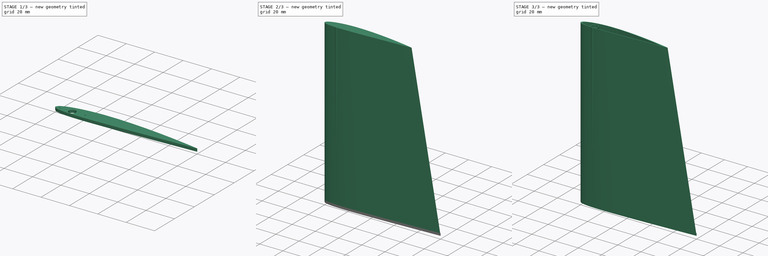
[diagram: build sequence overview — one tinted view per stage of 3, left to right]
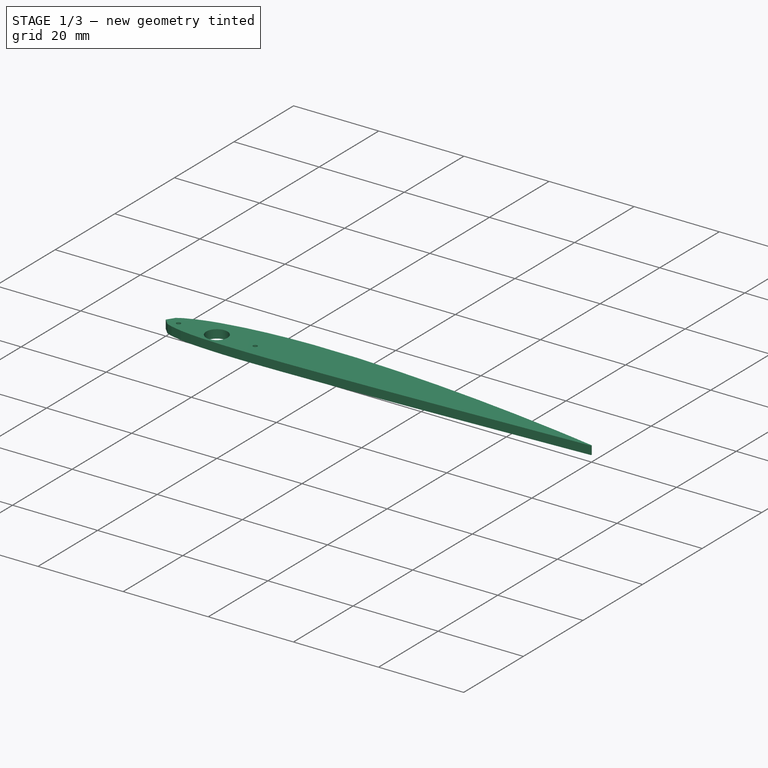
[diagram: stage 1 of 3 — iso view after this stage's code; geometry added in this stage tinted green]
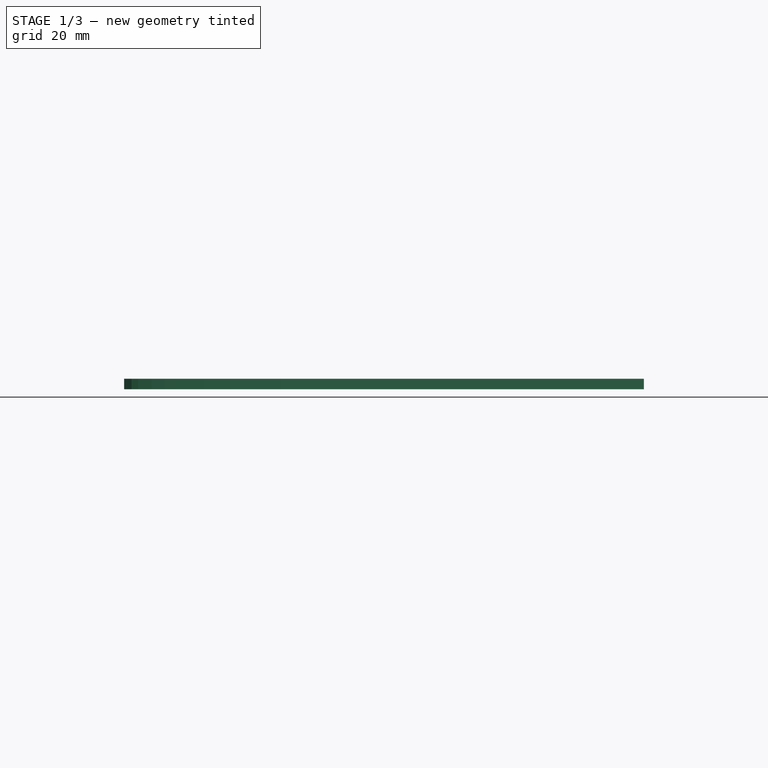
[diagram: stage 1 of 3 — front view after this stage's code; geometry added in this stage tinted green]
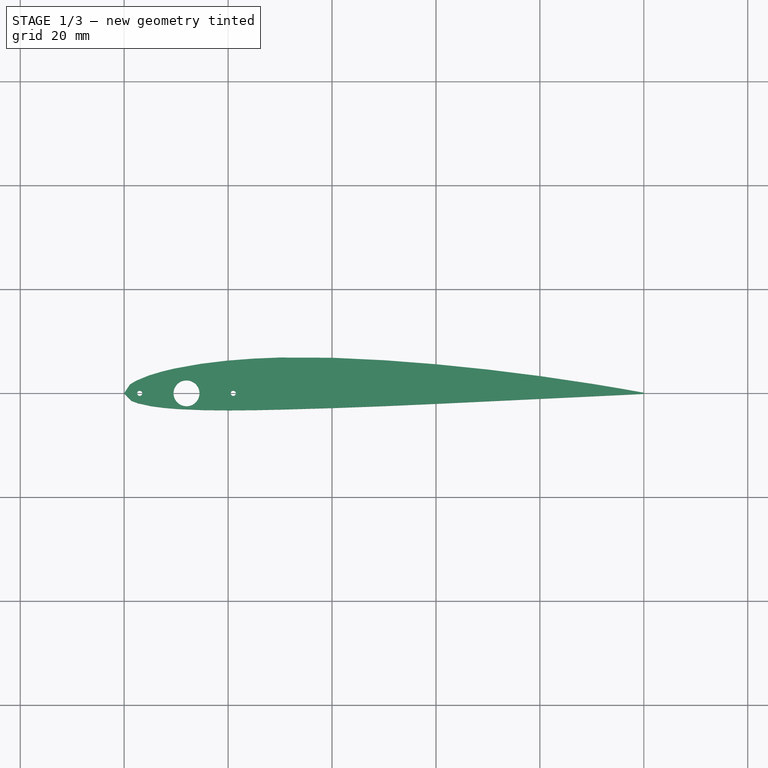
[diagram: stage 1 of 3 — top view after this stage's code; geometry added in this stage tinted green]
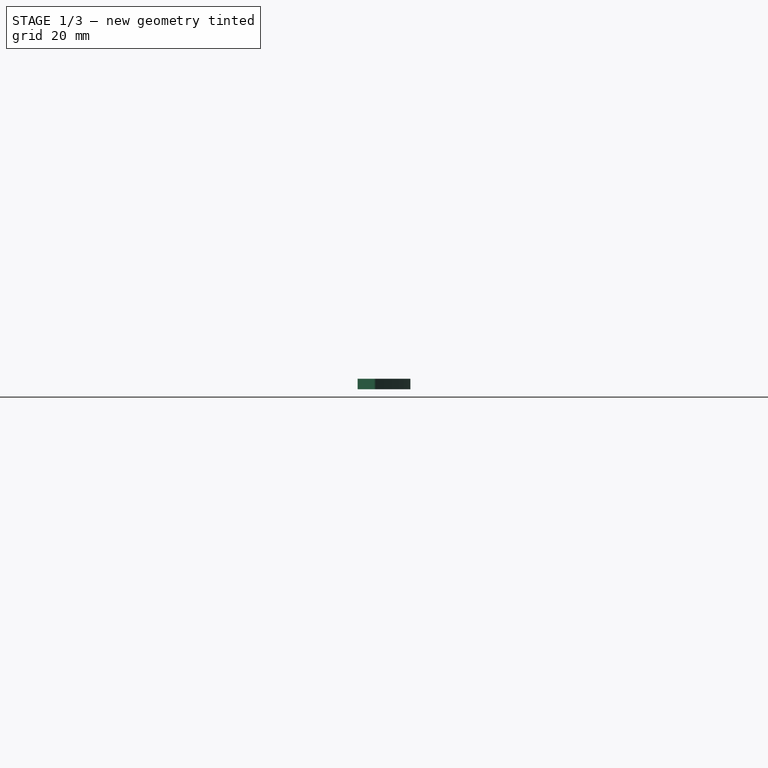
[diagram: stage 1 of 3 — right view after this stage's code; geometry added in this stage tinted green]
FCSTD DOCUMENT  (FreeCAD 0.16R6712 (Git))
Label: Canard_babord
License: All rights reserved
LicenseURL: http://en.wikipedia.org/wiki/All_rights_reserved
objects: Sketcher::SketchObject×3, Part::Feature×2, Part::FeaturePython×2, Part::Loft×2, PartDesign::Pad×2, App::DocumentObjectGroup×1, Part::Cut×1, PartDesign::Pocket×1, Part::MultiFuse×1
note: 17 computed .brp shape members not serialized (recipe doc carries the construction recipe); baked Part::Feature solids carry a one-line shape summary decoded from their .brp

FEATURE [Sketcher::SketchObject] Sketch001
  sketch-geometry (35):
    g0: LineSegment StartX=100 StartY=0.105 StartZ=0 EndX=95.041 EndY=0.99 EndZ=0
    g1: LineSegment StartX=95.041 StartY=0.99 StartZ=0 EndX=90.067 EndY=1.816 EndZ=0
    g2: LineSegment StartX=90.067 StartY=1.816 StartZ=0 EndX=80.097 EndY=3.296 EndZ=0
    g3: LineSegment StartX=80.097 StartY=3.296 StartZ=0 EndX=70.102 EndY=4.551 EndZ=0
    g4: LineSegment StartX=70.102 StartY=4.551 StartZ=0 EndX=60.085 EndY=5.58 EndZ=0
    g5: LineSegment StartX=60.085 StartY=5.58 StartZ=0 EndX=50.049 EndY=6.356 EndZ=0
    g6: LineSegment StartX=50.049 StartY=6.356 StartZ=0 EndX=40 EndY=6.837 EndZ=0
    g7: LineSegment StartX=40 StartY=6.837 StartZ=0 EndX=29.875 EndY=6.875 EndZ=0
    g8: LineSegment StartX=29.875 StartY=6.875 StartZ=0 EndX=24.814 EndY=6.668 EndZ=0
    g9: LineSegment StartX=24.814 StartY=6.668 StartZ=0 EndX=19.761 EndY=6.276 EndZ=0
    g10: LineSegment StartX=19.761 StartY=6.276 StartZ=0 EndX=14.722 EndY=5.665 EndZ=0
    g11: LineSegment StartX=14.722 StartY=5.665 StartZ=0 EndX=9.71 EndY=4.766 EndZ=0
    g12: LineSegment StartX=9.71 StartY=4.766 StartZ=0 EndX=7.217 EndY=4.169 EndZ=0
    g13: LineSegment StartX=7.217 StartY=4.169 StartZ=0 EndX=4.742 EndY=3.42 EndZ=0
    g14: LineSegment StartX=4.742 StartY=3.42 StartZ=0 EndX=2.297 EndY=2.411 EndZ=0
    g15: LineSegment StartX=2.297 StartY=2.411 StartZ=0 EndX=1.098 EndY=1.694 EndZ=0
    g16: LineSegment StartX=1.098 StartY=1.694 StartZ=0 EndX=0 EndY=0 EndZ=0
    g17: LineSegment StartX=0 StartY=0 StartZ=0 EndX=1.402 EndY=-1.448 EndZ=0
    g18: LineSegment StartX=1.402 StartY=-1.448 StartZ=0 EndX=2.703 EndY=-1.927 EndZ=0
    g19: LineSegment StartX=2.703 StartY=-1.927 StartZ=0 EndX=5.258 EndY=-2.482 EndZ=0
    g20: LineSegment StartX=5.258 StartY=-2.482 StartZ=0 EndX=7.783 EndY=-2.809 EndZ=0
    g21: LineSegment StartX=7.783 StartY=-2.809 StartZ=0 EndX=10.29 EndY=-3.016 EndZ=0
    g22: LineSegment StartX=10.29 StartY=-3.016 StartZ=0 EndX=15.278 EndY=-3.227 EndZ=0
    g23: LineSegment StartX=15.278 StartY=-3.227 StartZ=0 EndX=20.239 EndY=-3.276 EndZ=0
    g24: LineSegment StartX=20.239 StartY=-3.276 StartZ=0 EndX=25.186 EndY=-3.23 EndZ=0
    g25: LineSegment StartX=25.186 StartY=-3.23 StartZ=0 EndX=30.125 EndY=-3.125 EndZ=0
    g26: LineSegment StartX=30.125 StartY=-3.125 StartZ=0 EndX=40 EndY=-2.837 EndZ=0
    g27: LineSegment StartX=40 StartY=-2.837 StartZ=0 EndX=49.951 EndY=-2.468 EndZ=0
    g28: LineSegment StartX=49.951 StartY=-2.468 StartZ=0 EndX=59.915 EndY=-2.024 EndZ=0
    g29: LineSegment StartX=59.915 StartY=-2.024 StartZ=0 EndX=69.898 EndY=-1.551 EndZ=0
    g30: LineSegment StartX=69.898 StartY=-1.551 StartZ=0 EndX=79.903 EndY=-1.074 EndZ=0
    g31: LineSegment StartX=79.903 StartY=-1.074 StartZ=0 EndX=89.933 EndY=-0.594 EndZ=0
    g32: LineSegment StartX=89.933 StartY=-0.594 StartZ=0 EndX=94.959 EndY=-0.352 EndZ=0
    g33: LineSegment StartX=94.959 StartY=-0.352 StartZ=0 EndX=100 EndY=-0.105 EndZ=0
    g34: LineSegment StartX=100 StartY=-0.105 StartZ=0 EndX=100 EndY=0.105 EndZ=0
  constraints (35):
    c: Coincident(g0,g1)
    c: Coincident(g1,g2)
    c: Coincident(g2,g3)
    c: Coincident(g3,g4)
    c: Coincident(g4,g5)
    c: Coincident(g5,g6)
    c: Coincident(g6,g7)
    c: Coincident(g7,g8)
    c: Coincident(g8,g9)
    c: Coincident(g9,g10)
    c: Coincident(g10,g11)
    c: Coincident(g11,g12)
    c: Coincident(g12,g13)
    c: Coincident(g13,g14)
    c: Coincident(g14,g15)
    c: Coincident(g15,g16)
    c: Coincident(g16,g17)
    c: Coincident(g17,g18)
    c: Coincident(g18,g19)
    c: Coincident(g19,g20)
    c: Coincident(g20,g21)
    c: Coincident(g21,g22)
    c: Coincident(g22,g23)
    c: Coincident(g23,g24)
    c: Coincident(g24,g25)
    c: Coincident(g25,g26)
    c: Coincident(g26,g27)
    c: Coincident(g27,g28)
    c: Coincident(g28,g29)
    c: Coincident(g29,g30)
    c: Coincident(g30,g31)
    c: Coincident(g31,g32)
    c: Coincident(g32,g33)
    c: Coincident(g33,g34)
    c: Coincident(g34,g0)
FEATURE [PartDesign::Pad] Pad
  Length = 2
  Length2 = 100
  Sketch = -> Sketch001
  Type = 0
FEATURE [Sketcher::SketchObject] Sketch
  Placement = pos=(0,0,2) rot=(0,0,1;0rad)
  Support = -> Pad [Face37]
  sketch-geometry (3):
    g0: Circle CenterX=12 CenterY=0 CenterZ=0 NormalX=0 NormalY=0 NormalZ=1 Radius=2.5
    g1: Circle CenterX=3 CenterY=0 CenterZ=0 NormalX=0 NormalY=0 NormalZ=1 Radius=0.5
    g2: Circle CenterX=21 CenterY=0 CenterZ=0 NormalX=0 NormalY=0 NormalZ=1 Radius=0.5
  constraints (9):
    c: PointOnObject(g0,g-1)
    c: PointOnObject(g2,g-1)
    c: DistanceX(g-1,g0) = 12
    c: Radius(g0) = 2.5
    c: Radius(g1) = 0.5
    c: Equal(g1,g2)
    c: DistanceX(g1,g2) = 18
    c: DistanceX(g1,g0) = 9
    c: PointOnObject(g1,g-1)
FEATURE [PartDesign::Pocket] Pocket
  Length = 5
  Sketch = -> Sketch
  Type = 1
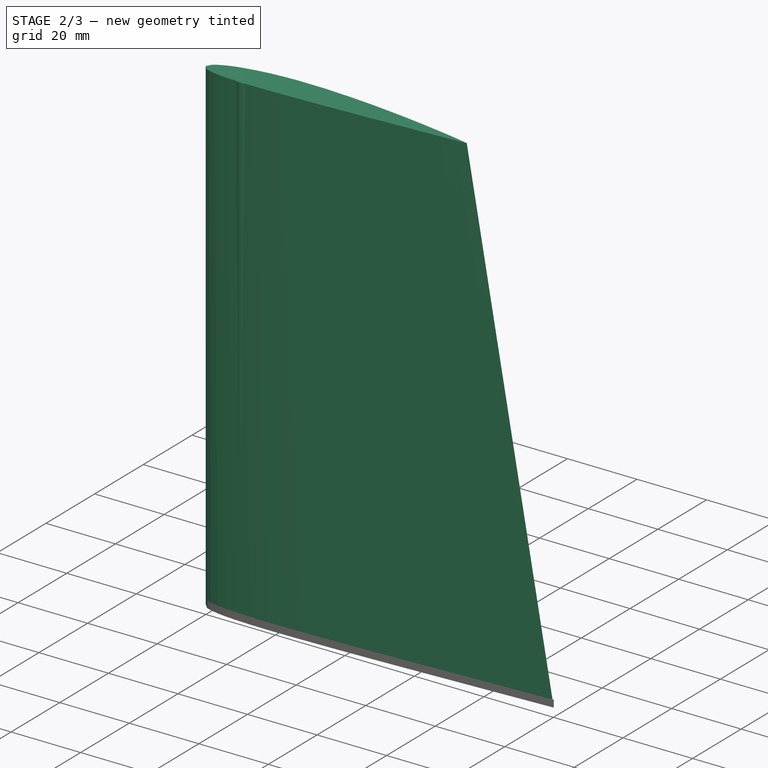
[diagram: stage 2 of 3 — iso view after this stage's code; geometry added in this stage tinted green]
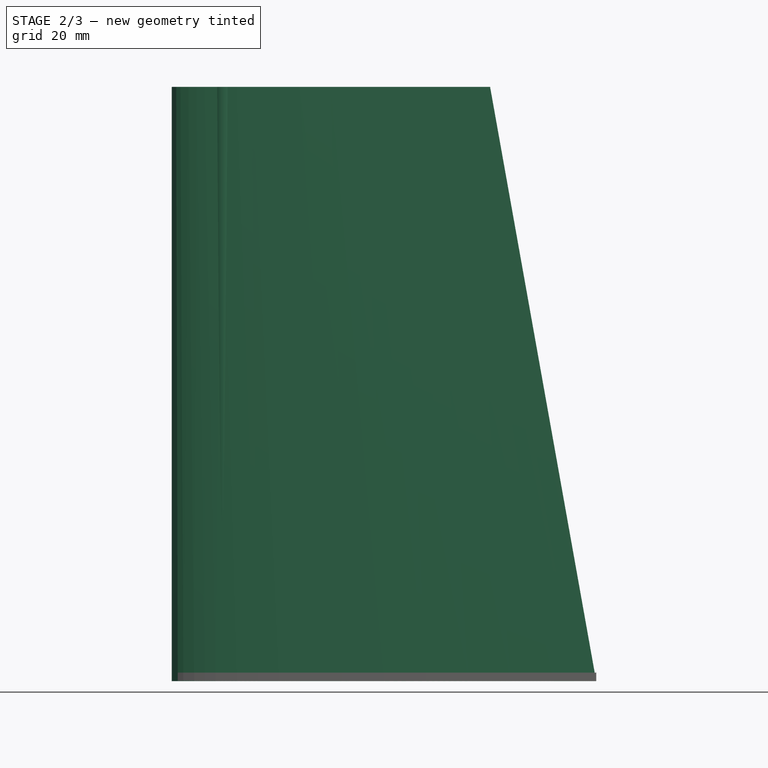
[diagram: stage 2 of 3 — front view after this stage's code; geometry added in this stage tinted green]
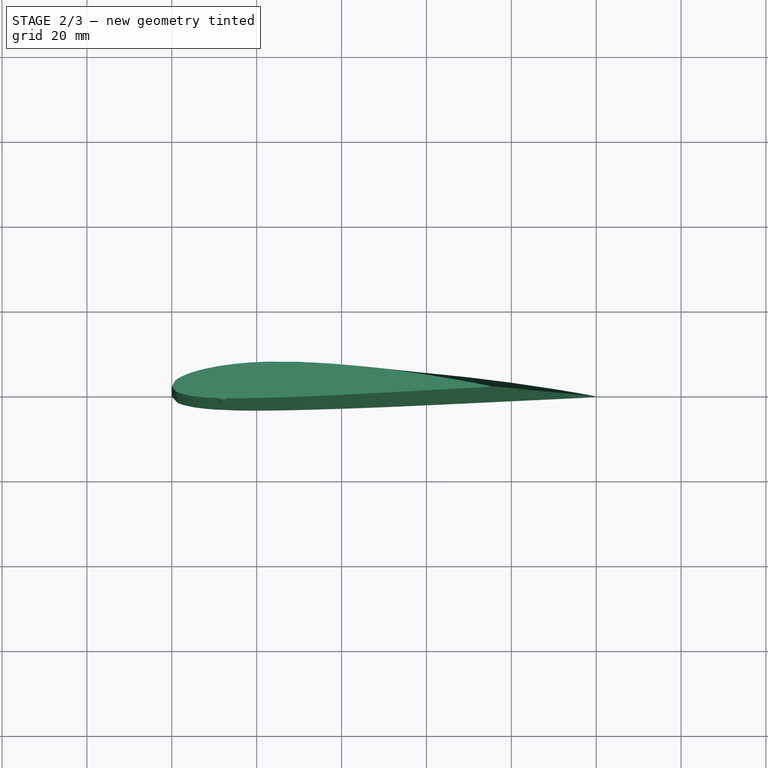
[diagram: stage 2 of 3 — top view after this stage's code; geometry added in this stage tinted green]
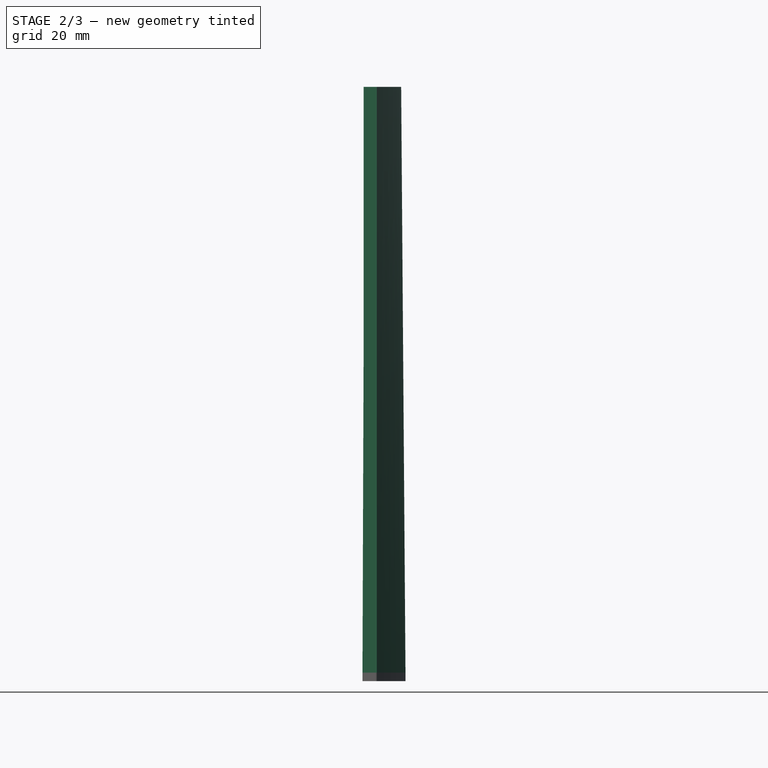
[diagram: stage 2 of 3 — right view after this stage's code; geometry added in this stage tinted green]
FEATURE [App::DocumentObjectGroup] naca2410
FEATURE [Part::Feature] Face001
  Placement = pos=(2,0.15,0) rot=(0,0,1;0rad)
  shape: bbox 90 x 9.136 x 2e-07 mm, 1 faces, 0 solids (baked)
FEATURE [Part::Feature] Face
  shape: bbox 100 x 10.15 x 2e-07 mm, 1 faces, 0 solids (baked)
FEATURE [Part::FeaturePython] Scale001  # Draft clone (typed FeaturePython)
  Objects = -> [Face001]
  Placement = pos=(2,0.15,140) rot=(0,0,1;0rad)
  Scale = (0.75,0.85,0)
FEATURE [Part::FeaturePython] Scale  # Draft clone (typed FeaturePython)
  Objects = -> [Face]
  Placement = pos=(0,0,140) rot=(0,0,1;0rad)
  Scale = (0.75,0.85,0)
FEATURE [Part::Loft] Loft001
  Closed = false
  Ruled = false
  Sections = -> [Scale001,Face001]
  Solid = true
FEATURE [Part::Loft] Loft
  Closed = false
  Ruled = false
  Sections = -> [Face,Scale]
  Solid = true
FEATURE [Sketcher::SketchObject] Sketch002
  ExternalGeometry = -> [Pocket]
  Placement = pos=(0,0,2) rot=(0,0,1;0rad)
  Support = -> Pocket [Face5]
  sketch-geometry (2):
    g0: Circle CenterX=12 CenterY=0 CenterZ=0 NormalX=0 NormalY=0 NormalZ=1 Radius=3
    g1: Circle CenterX=12 CenterY=0 CenterZ=0 NormalX=0 NormalY=0 NormalZ=1 Radius=2.5
  constraints (5):
    c: PointOnObject(g1,g-1)
    c: Coincident(g0,g1)
    c: Coincident(g0,g-4)
    c: Radius(g1) = 2.5
    c: Radius(g0) = 3
FEATURE [PartDesign::Pad] Pad001
  Length = 138
  Length2 = 100
  Sketch = -> Sketch002
  Type = 0
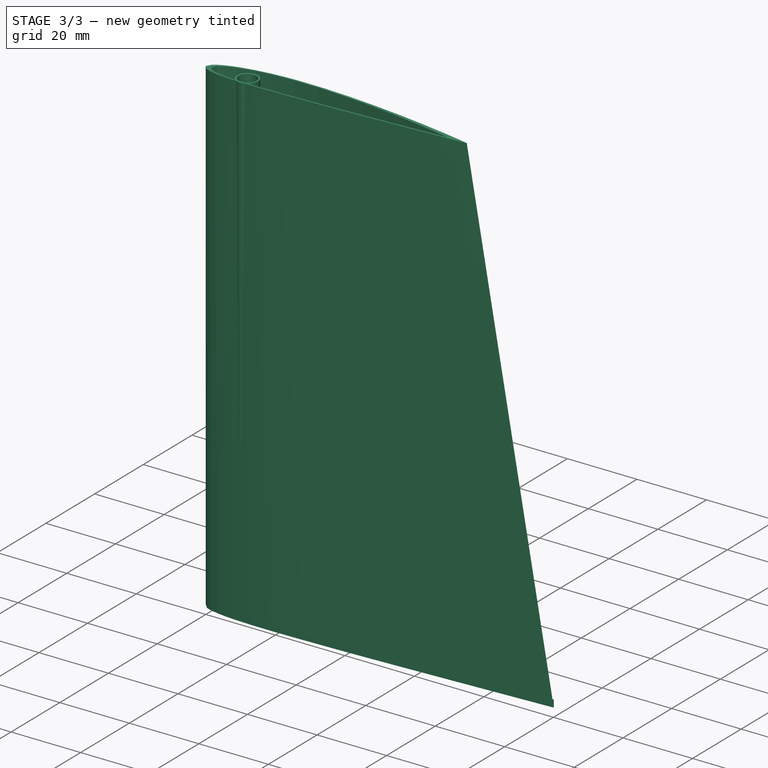
[diagram: stage 3 of 3 — iso view after this stage's code; geometry added in this stage tinted green]
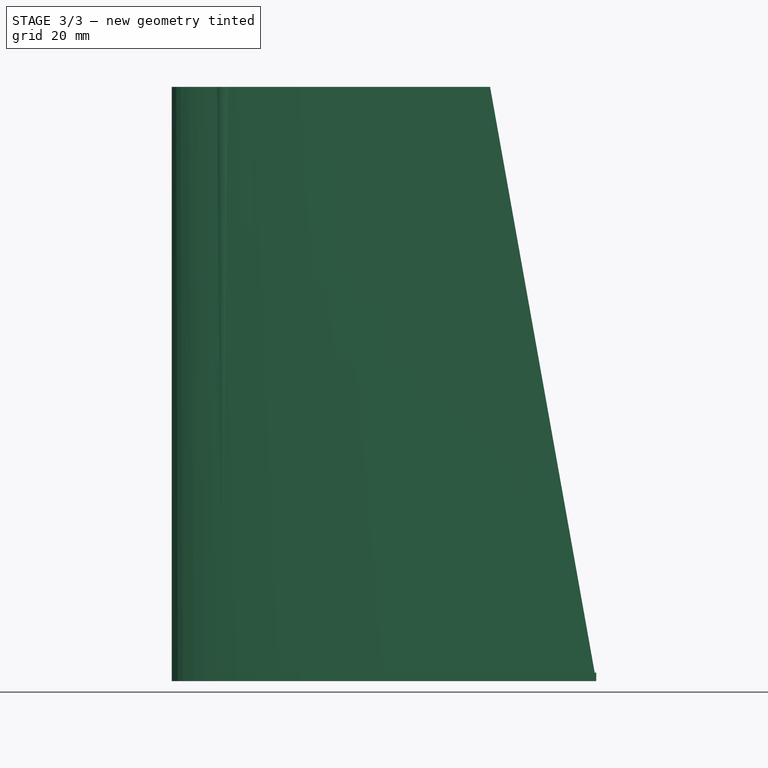
[diagram: stage 3 of 3 — front view after this stage's code; geometry added in this stage tinted green]
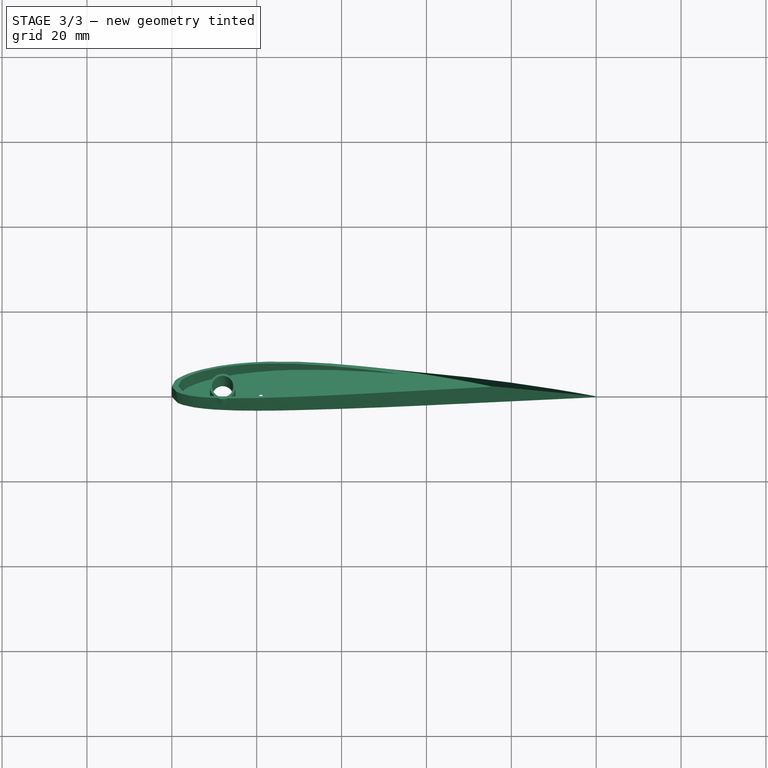
[diagram: stage 3 of 3 — top view after this stage's code; geometry added in this stage tinted green]
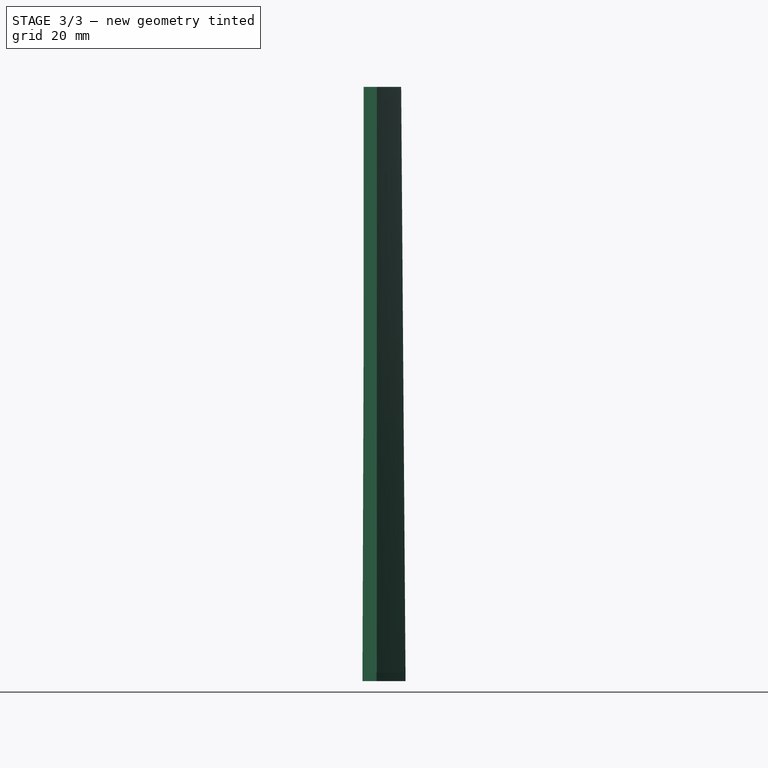
[diagram: stage 3 of 3 — right view after this stage's code; geometry added in this stage tinted green]
FEATURE [Part::Cut] Cut
  Base = -> Loft
  Tool = -> Loft001
FEATURE [Part::MultiFuse] Fusion
  Shapes = -> [Cut,Pad001]
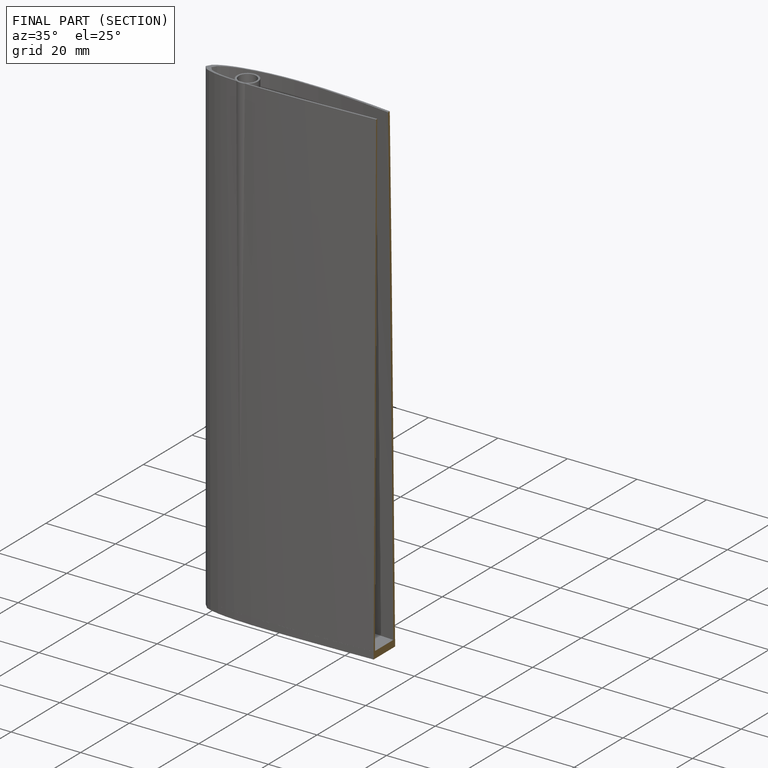
[diagram: finished part — half-section view (interior)]
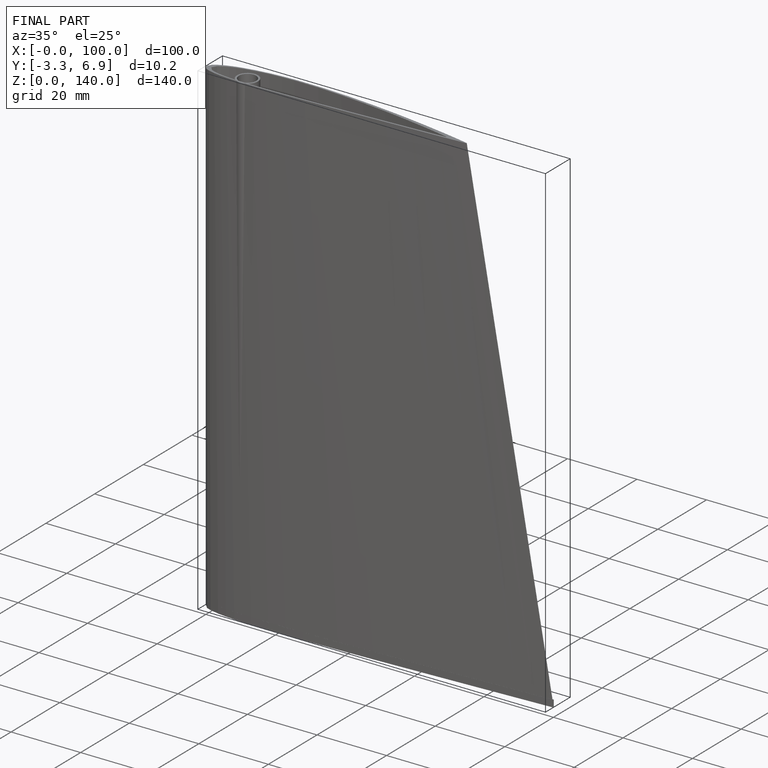
[diagram: finished part — iso view with bounding-box wireframe]
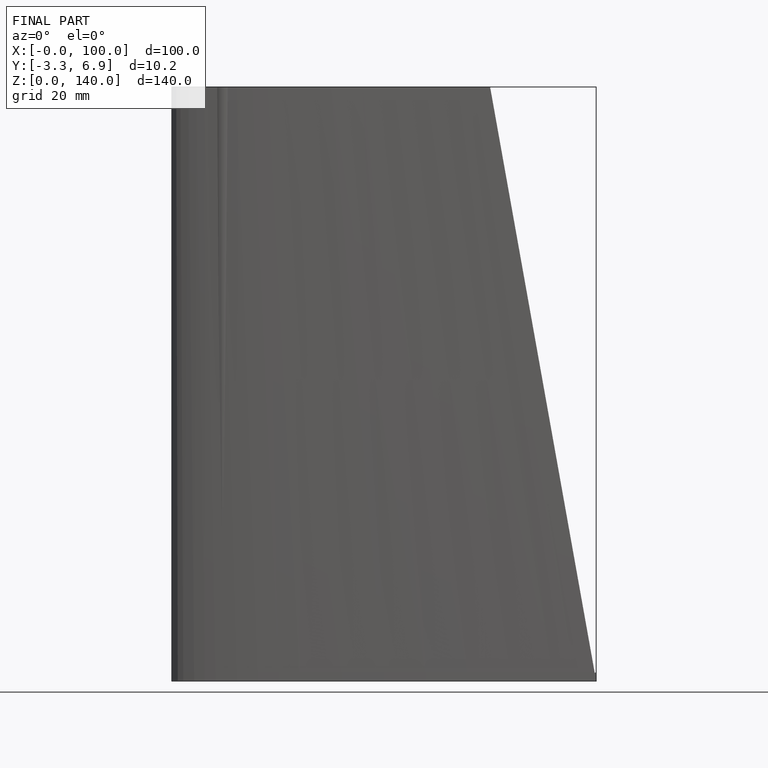
[diagram: finished part — front view with bounding-box wireframe]
